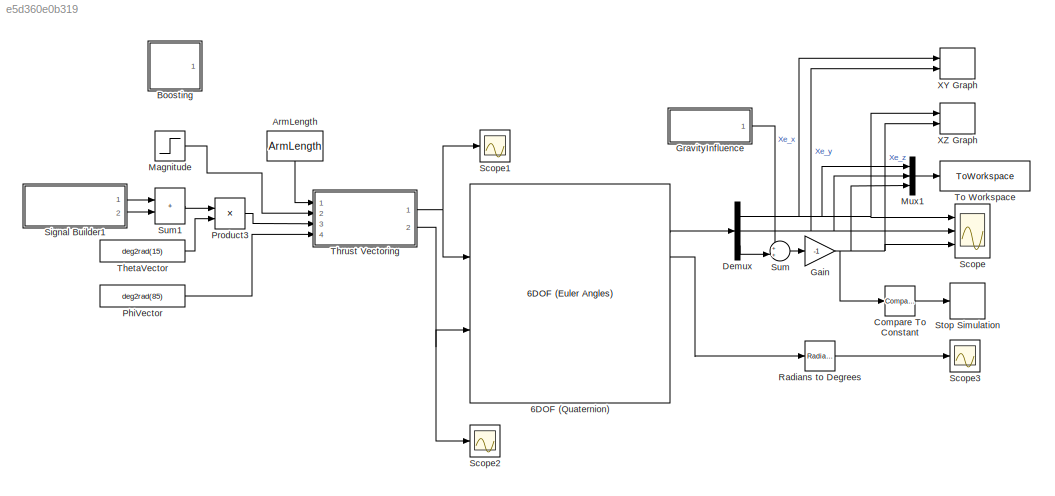
MODEL slx_e5d360e0b319
KIND model
CONFIG AbsTol = 1e-6
CONFIG EnableMultiTasking = off
CONFIG FixedStep = auto
CONFIG MaxStep = auto
CONFIG MinStep = auto
CONFIG PreLoadFcn = airframe_init
CONFIG RelTol = 1e-3
CONFIG SampleTimeConstraint = Unconstrained
CONFIG SolverName = ode45
CONFIG StartTime = 0.0
CONFIG StopFcn = airframe_plot
CONFIG StopTime = SimTime
BLOCK [Reference] 6DOF (Quaternion)  REF=shared6dof/6DOF (Euler Angles)
  Ports = [2, 8]
  SourceBlock = shared6dof/6DOF (Euler Angles)
  SourceProductBaseCode = AE,PW,DR,MT,VE
  SourceType = 6DOF EoM (Body Axis)
BLOCK [Constant] ArmLength
  NameLocation = top
  Value = ArmLength
  VectorParams1D = off
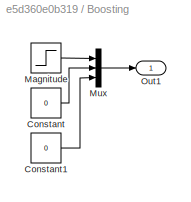
BLOCK [SubSystem] Boosting
  Ports = [0, 1]
  RequestExecContextInheritance = off
BLOCK [Constant] Boosting/Constant
  Value = 0
BLOCK [Constant] Boosting/Constant1
  Value = 0
BLOCK [Step] Boosting/Magnitude
  After = 0
  Before = thrust_magnitude
  SampleTime = 0
  Time = boosting_time
BLOCK [Mux] Boosting/Mux
  DisplayOption = bar
  Inputs = 3
  Ports = [3, 1]
BLOCK [Outport] Boosting/Out1
BLOCK [Reference] Compare To Constant  REF=simulink/Logic and Bit
Operations/Compare
To Constant
  Ports = [1, 1]
  SourceBlock = simulink/Logic and Bit\nOperations/Compare\nTo Constant
  SourceProductBaseCode = SL
  SourceType = Compare To Constant
BLOCK [Demux] Demux
  Outputs = 3
  Ports = [1, 3]
BLOCK [Gain] Gain
  Gain = -1
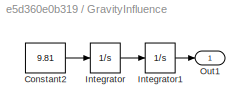
BLOCK [SubSystem] GravityInfluence
  NameLocation = top
  Ports = [0, 1]
  RequestExecContextInheritance = off
BLOCK [Constant] GravityInfluence/Constant2
  Value = 9.81
BLOCK [Integrator] GravityInfluence/Integrator
  Ports = [1, 1]
BLOCK [Integrator] GravityInfluence/Integrator1
  Ports = [1, 1]
BLOCK [Outport] GravityInfluence/Out1
BLOCK [Step] Magnitude
  After = 0
  Before = thrust_magnitude
  SampleTime = 0
  Time = 5
BLOCK [Mux] Mux1
  DisplayOption = bar
  Inputs = 3
  Ports = [3, 1]
BLOCK [Constant] PhiVector
  Value = deg2rad(85)
BLOCK [Product] Product3
  Ports = [2, 1]
BLOCK [Reference] Radians to Degrees  REF=simulink_extras/Transformations/Radians
to Degrees
  Ports = [1, 1]
  SourceBlock = simulink_extras/Transformations/Radians\nto Degrees
  SourceProductBaseCode = SL
  SourceType = RadiansToDegrees
BLOCK [Scope] Scope
  Floating = off
  NumInputPorts = 3
  Ports = [3]
  ScopeSpecificationString = Simulink.scopes.TimeScopeBlockCfg('CurrentConfiguration', extmgr.ConfigurationSet(extmgr.Configuration('Core','General UI',true),extmgr.Configuration('Core','Source UI',true),extmgr.Configuration('Sources','WiredSimulink',true),extmgr.Configuration('Visuals','Time Domain',true,'SerializedDisplays',{struct('MinYLimReal','-94.9663','MaxYLimReal','854.69669','YLabelReal','','MinYLimMag','0.00000','Ma...<+2733ch>
BLOCK [Scope] Scope1
  Floating = off
  NumInputPorts = 1
  Ports = [1]
  ScopeSpecificationString = Simulink.scopes.TimeScopeBlockCfg('CurrentConfiguration', extmgr.ConfigurationSet(extmgr.Configuration('Core','General UI',true),extmgr.Configuration('Core','Source UI',true),extmgr.Configuration('Sources','WiredSimulink',true,'DataLoggingVariableName','ScopeData1'),extmgr.Configuration('Visuals','Time Domain',true,'SerializedDisplays',{struct('MinYLimReal','-53458.04238','MaxYLimReal','92606.4491...<+1480ch>
BLOCK [Scope] Scope2
  Floating = off
  NumInputPorts = 1
  Ports = [1]
  ScopeSpecificationString = Simulink.scopes.TimeScopeBlockCfg('CurrentConfiguration', extmgr.ConfigurationSet(extmgr.Configuration('Core','General UI',true),extmgr.Configuration('Core','Source UI',true),extmgr.Configuration('Sources','WiredSimulink',true,'DataLoggingVariableName','ScopeData1'),extmgr.Configuration('Visuals','Time Domain',true,'SerializedDisplays',{struct('MinYLimReal','-109083.74405','MaxYLimReal','64856.096...<+1509ch>
BLOCK [Scope] Scope3
  Floating = off
  NumInputPorts = 1
  Ports = [1]
  ScopeSpecificationString = Simulink.scopes.TimeScopeBlockCfg('CurrentConfiguration', extmgr.ConfigurationSet(extmgr.Configuration('Core','General UI',true),extmgr.Configuration('Core','Source UI',true),extmgr.Configuration('Sources','WiredSimulink',true,'DataLoggingVariableName','ScopeData2'),extmgr.Configuration('Visuals','Time Domain',true,'SerializedDisplays',{struct('MinYLimReal','-213.64366','MaxYLimReal','221.65288','...<+1489ch>
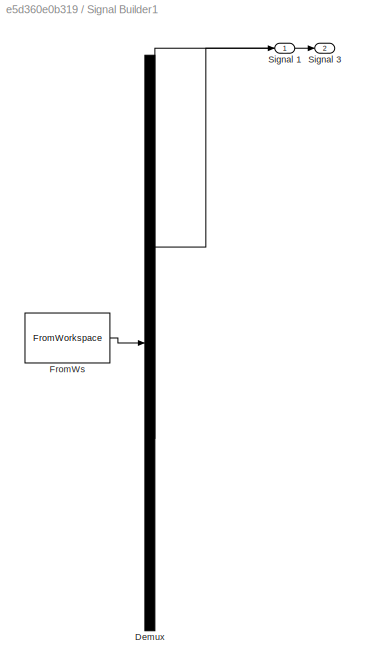
BLOCK [SubSystem] Signal Builder1
  ClipboardFcn = sigbuilder_block('clipboard');
  CloseFcn = sigbuilder_block('close');
  ContinueFcn = sigbuilder_block('continue');
  CopyFcn = sigbuilder_block('copy');
  DeleteFcn = sigbuilder_block('delete');
  LoadFcn = sigbuilder_block('load');
  MaskHideContents = on
  ModelCloseFcn = sigbuilder_block('modelClose');
  NameChangeFcn = sigbuilder_block('namechange');
  OpenFcn = sigbuilder_block('open',[40.5 0 1399.5 720.75 ]);
  PauseFcn = sigbuilder_block('pause');
  Ports = [0, 2]
  PreSaveFcn = sigbuilder_block('preSave');
  RequestExecContextInheritance = off
  StartFcn = sigbuilder_block('start');
  StopFcn = sigbuilder_block('stop');
  Tag = STV Subsys
BLOCK [Demux] Signal Builder1/Demux
  DisplayOption = none
  Outputs = 2
  Ports = [1, 2]
  Tag = STV Demux
BLOCK [FromWorkspace] Signal Builder1/FromWs
  Tag = STV FromWs
  VariableName = tuvar
BLOCK [Outport] Signal Builder1/Signal 1
  Tag = STV Outport
BLOCK [Outport] Signal Builder1/Signal 3
  Port = 2
  Tag = STV Outport
BLOCK [Stop] Stop Simulation
BLOCK [Sum] Sum
  Inputs = ++|
  Ports = [2, 1]
BLOCK [Sum] Sum1
  IconShape = rectangular
  Ports = [2, 1]
BLOCK [Constant] ThetaVector
  Value = deg2rad(15)
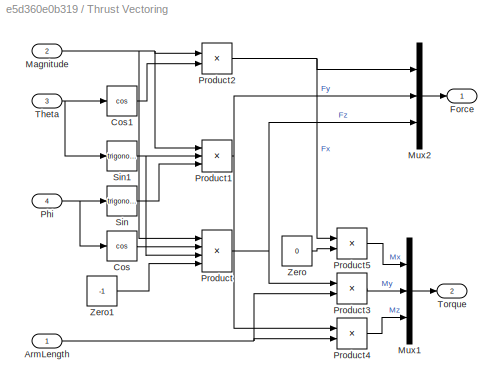
BLOCK [SubSystem] Thrust Vectoring
  Ports = [4, 2]
  RequestExecContextInheritance = off
BLOCK [Inport] Thrust Vectoring/ArmLength
BLOCK [Trigonometry] Thrust Vectoring/Cos
  Operator = cos
  Ports = [1, 1]
BLOCK [Trigonometry] Thrust Vectoring/Cos1
  Operator = cos
  Ports = [1, 1]
BLOCK [Outport] Thrust Vectoring/Force
BLOCK [Inport] Thrust Vectoring/Magnitude
  Port = 2
BLOCK [Mux] Thrust Vectoring/Mux1
  DisplayOption = bar
  Inputs = 3
  Ports = [3, 1]
BLOCK [Mux] Thrust Vectoring/Mux2
  DisplayOption = bar
  Inputs = 3
  Ports = [3, 1]
BLOCK [Inport] Thrust Vectoring/Phi
  Port = 4
BLOCK [Product] Thrust Vectoring/Product
  Inputs = 4
  Ports = [4, 1]
BLOCK [Product] Thrust Vectoring/Product1
  Inputs = 3
  Ports = [3, 1]
BLOCK [Product] Thrust Vectoring/Product2
  Ports = [2, 1]
BLOCK [Product] Thrust Vectoring/Product3
  Ports = [2, 1]
BLOCK [Product] Thrust Vectoring/Product4
  Ports = [2, 1]
BLOCK [Product] Thrust Vectoring/Product5
  Ports = [2, 1]
BLOCK [Trigonometry] Thrust Vectoring/Sin
  Ports = [1, 1]
BLOCK [Trigonometry] Thrust Vectoring/Sin1
  Ports = [1, 1]
BLOCK [Inport] Thrust Vectoring/Theta
  Port = 3
BLOCK [Outport] Thrust Vectoring/Torque
  Port = 2
BLOCK [Constant] Thrust Vectoring/Zero
  Value = 0
BLOCK [Constant] Thrust Vectoring/Zero1
  Value = -1
BLOCK [ToWorkspace] To Workspace
  MaxDataPoints = inf
  Ports = [1]
  SampleTime = -1
  SaveFormat = Structure With Time
  VariableName = pose_missile
BLOCK [Record] XY Graph
  CompatibilityTag = XY
  FileSettingsInternal = {"entries":[{"content":{"excelSettings":{"content":{},"type":"Streamout.ExcelSettings"}},"type":"Streamout.FileSettingStorage","uuid":"0ebe5bd2-6dd8-4422-9468-a2e5212a589c"}],"packageUris":["http://schema.mathworks.com/mf0/streamout_blocks/R2020a"],"version":"1.0"}
  Layout = [1 1]
  Ports = [2]
  SignalsInternal = {"entries":[{"content":{"signals":[{"content":{"blockPath":["ssm_airframe_thrustvectored_test/XY Graph"],"channel":[],"dimensions":[1],"domain":"ssm_airframe_thrustvectored_test/XY Graph","lineColor":"#a2142f","plots":[1],"port":1,"sid":[""],"signalID":2033,"signalName":"Xe_x"},"type":"RecordBlkView.Signal","uuid":"929725db-a9ff-4e40-934e-6f60430dcc31"},{"content":{"blockPath":["ssm_airframe_thrus...<+453ch>
  VisualizationBindings = {"xyplotplugin":{"info":[{"series":[{"bindingParametersList":[{"parameter":"X-Axis","signalID":2033,"signalName":"Xe_x"},{"parameter":"Y-Axis","signalID":2037,"signalName":"Xe_y"}],"seriesID":26156}],"subplotID":1}]}}
BLOCK [Record] XZ Graph
  CompatibilityTag = XY
  FileSettingsInternal = {"entries":[{"content":{"excelSettings":{"content":{},"type":"Streamout.ExcelSettings"}},"type":"Streamout.FileSettingStorage","uuid":"bbd1cac7-7029-4a9d-b9ac-d55883903ed7"}],"packageUris":["http://schema.mathworks.com/mf0/streamout_blocks/R2020a"],"version":"1.0"}
  Layout = [1 1]
  Ports = [2]
  SignalsInternal = {"entries":[{"content":{"signals":[{"content":{"blockPath":["ssm_airframe_thrustvectored_test/XZ Graph"],"channel":[],"dimensions":[1],"domain":"ssm_airframe_thrustvectored_test/XZ Graph","lineColor":"#a2142f","plots":[1],"port":1,"sid":[""],"signalID":2041,"signalName":"Xe_x"},"type":"RecordBlkView.Signal","uuid":"0a9b8eae-95df-4890-bdce-3116e9e64470"},{"content":{"blockPath":["ssm_airframe_thrus...<+453ch>
  VisualizationBindings = {"xyplotplugin":{"info":[{"series":[{"bindingParametersList":[{"parameter":"X-Axis","signalID":2041,"signalName":"Xe_x"},{"parameter":"Y-Axis","signalID":2045,"signalName":"Xe_z"}],"seriesID":25179}],"subplotID":1}]}}
LINE 6DOF (Quaternion):2 -> Demux:1
LINE 6DOF (Quaternion):3 -> Radians to Degrees:1
LINE ArmLength:1 -> Thrust Vectoring:1
LINE Boosting/Constant1:1 -> Boosting/Mux:3
LINE Boosting/Constant:1 -> Boosting/Mux:2
LINE Boosting/Magnitude:1 -> Boosting/Mux:1
LINE Boosting/Mux:1 -> Boosting/Out1:1
LINE Compare To Constant:1 -> Stop Simulation:1
NET Demux:1 -> Mux1:1, Scope:1, XY Graph:1, XZ Graph:1
NET Demux:2 -> Mux1:2, Scope:2, XY Graph:2
LINE Demux:3 -> Sum:2
NET Gain:1 -> Compare To Constant:1, Mux1:3, Scope:3, XZ Graph:2
LINE GravityInfluence/Constant2:1 -> GravityInfluence/Integrator:1
LINE GravityInfluence/Integrator1:1 -> GravityInfluence/Out1:1
LINE GravityInfluence/Integrator:1 -> GravityInfluence/Integrator1:1
LINE GravityInfluence:1 -> Sum:1
LINE Magnitude:1 -> Thrust Vectoring:2
LINE Mux1:1 -> To Workspace:1
LINE PhiVector:1 -> Thrust Vectoring:4
LINE Product3:1 -> Thrust Vectoring:3
LINE Radians to Degrees:1 -> Scope3:1
LINE Signal Builder1:1 -> Sum1:1
LINE Signal Builder1:2 -> Sum1:2
LINE Sum1:1 -> Product3:1
LINE Sum:1 -> Gain:1
LINE ThetaVector:1 -> Product3:2
NET Thrust Vectoring/ArmLength:1 -> Thrust Vectoring/Product3:2, Thrust Vectoring/Product4:2
LINE Thrust Vectoring/Cos1:1 -> Thrust Vectoring/Product2:2
LINE Thrust Vectoring/Cos:1 -> Thrust Vectoring/Product:2
NET Thrust Vectoring/Magnitude:1 -> Thrust Vectoring/Product1:1, Thrust Vectoring/Product2:1, Thrust Vectoring/Product:1
LINE Thrust Vectoring/Mux1:1 -> Thrust Vectoring/Torque:1
LINE Thrust Vectoring/Mux2:1 -> Thrust Vectoring/Force:1
NET Thrust Vectoring/Phi:1 -> Thrust Vectoring/Cos:1, Thrust Vectoring/Sin:1
NET Thrust Vectoring/Product1:1 -> Thrust Vectoring/Mux2:2, Thrust Vectoring/Product4:1
NET Thrust Vectoring/Product2:1 -> Thrust Vectoring/Mux2:1, Thrust Vectoring/Product5:1
LINE Thrust Vectoring/Product3:1 -> Thrust Vectoring/Mux1:2
LINE Thrust Vectoring/Product4:1 -> Thrust Vectoring/Mux1:3
LINE Thrust Vectoring/Product5:1 -> Thrust Vectoring/Mux1:1
NET Thrust Vectoring/Product:1 -> Thrust Vectoring/Mux2:3, Thrust Vectoring/Product3:1
NET Thrust Vectoring/Sin1:1 -> Thrust Vectoring/Product1:2, Thrust Vectoring/Product:3
LINE Thrust Vectoring/Sin:1 -> Thrust Vectoring/Product1:3
NET Thrust Vectoring/Theta:1 -> Thrust Vectoring/Cos1:1, Thrust Vectoring/Sin1:1
LINE Thrust Vectoring/Zero1:1 -> Thrust Vectoring/Product:4
LINE Thrust Vectoring/Zero:1 -> Thrust Vectoring/Product5:2
NET Thrust Vectoring:1 -> 6DOF (Quaternion):1, Scope1:1
NET Thrust Vectoring:2 -> 6DOF (Quaternion):2, Scope2:1
note: NET lines group one-source signal fan-out (src -> all destinations, sorted); 1:1 wires keep LINE
